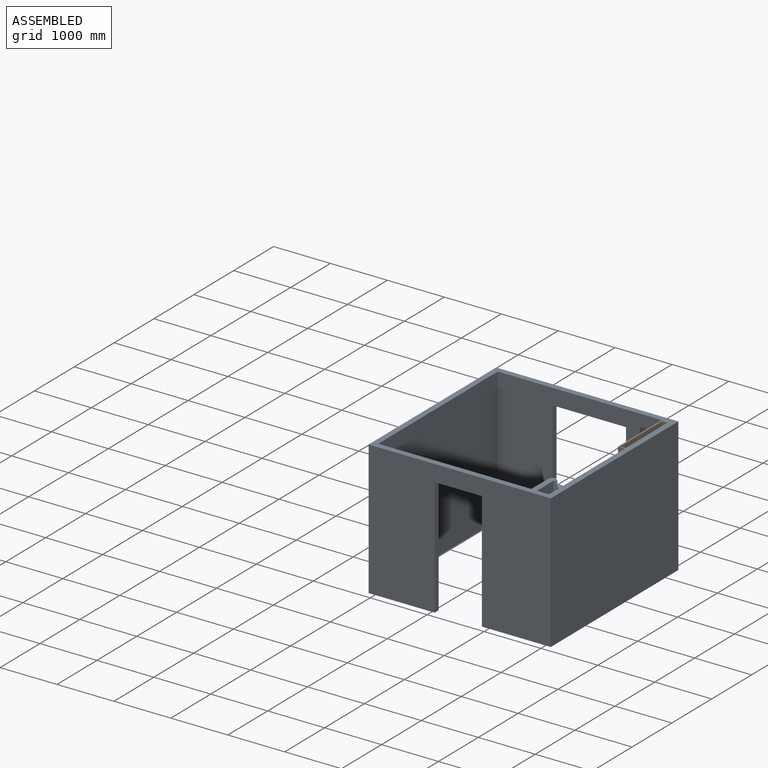
[diagram: assembled view]
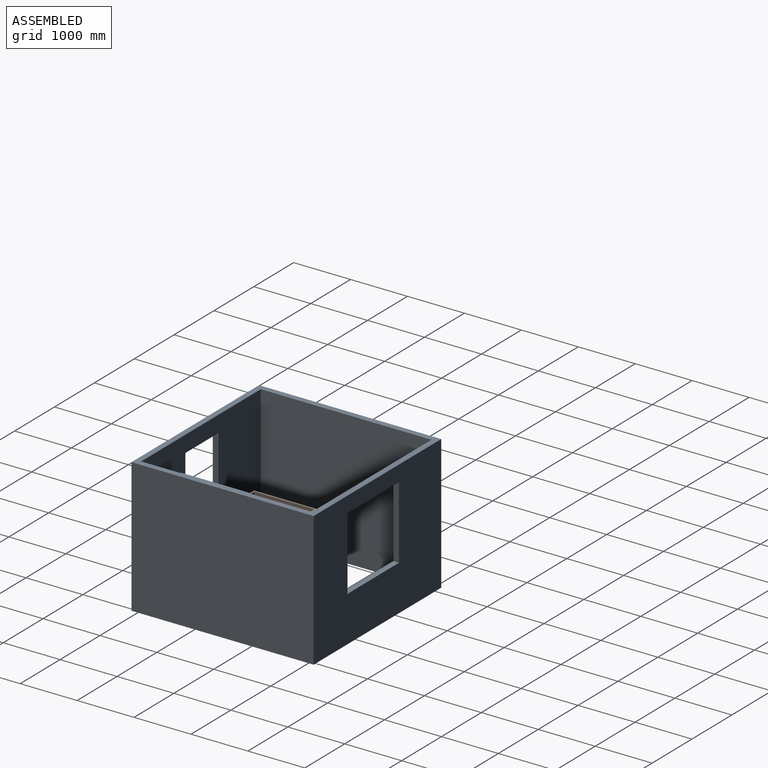
[diagram: assembled view, second angle]
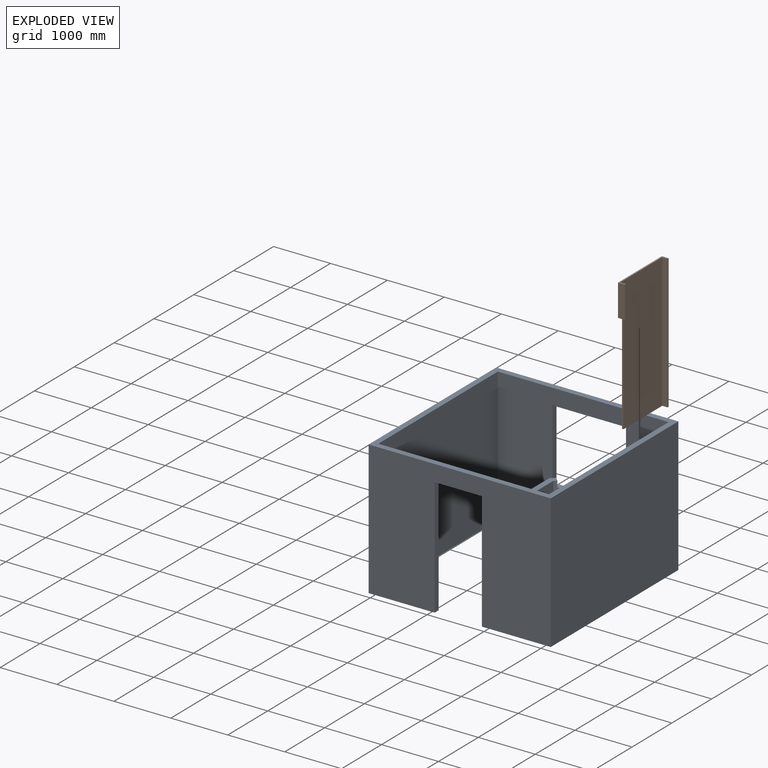
[diagram: exploded view]
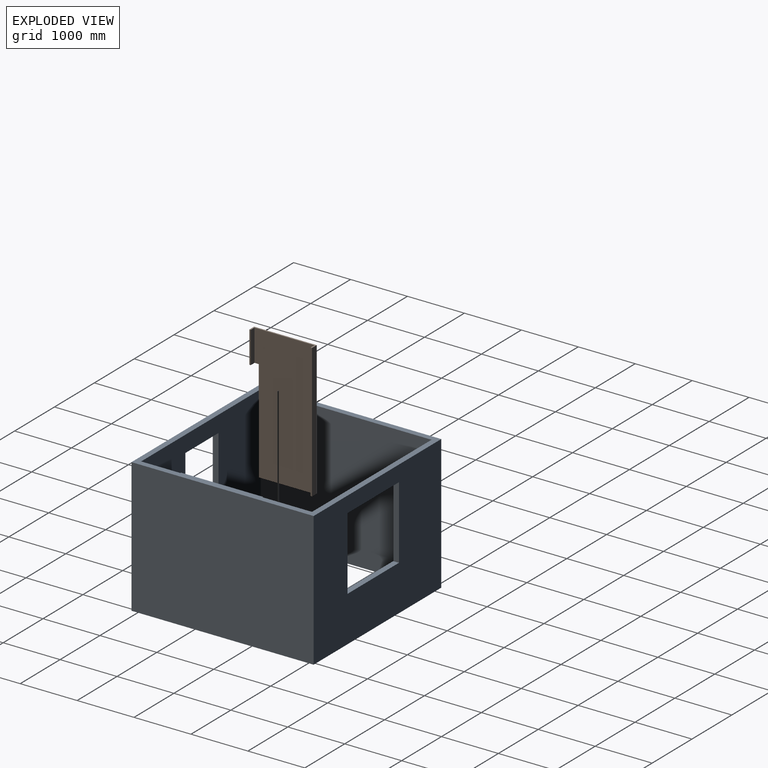
[diagram: exploded view, second angle]
ASSEMBLY  parts=2 mates=3
PART A: 29 faces, bbox 3200x3200x2360 mm
  f0: plane 3000x2360mm, normal (-1,0,0), area 6900000mm2, adj f1,f3,f8,f9,f23,f24,f28
  f1: plane 3000x2360mm, normal (0,1,0), area 5181900mm2, adj f0,f7,f8,f9,f10,f11,f12,f17
  f2: plane 3200x2360mm, normal (0,-1,0), area 5833900mm2, adj f4,f6,f8,f9,f10,f11,f12
  f3: plane 3000x2360mm, normal (0,-1,0), area 5428800mm2, adj f0,f7,f8,f9,f13,f14,f15,f16
  f4: plane 3200x2360mm, normal (1,0,0), area 7552000mm2, adj f2,f5,f8,f9
  f5: plane 3200x2360mm, normal (0,1,0), area 5900800mm2, adj f4,f6,f8,f9,f13,f14,f15,f16
  f6: plane 3200x2360mm, normal (-1,0,0), area 7552000mm2, adj f2,f5,f8,f9
  f7: plane 3000x2360mm, normal (1,0,0), area 7080000mm2, adj f1,f3,f8,f9
  f8: plane 3200x3200mm, normal (0,0,1), area 1240000mm2, adj f0,f1,f2,f3,f4,f5,f6,f7
  f9: plane 3200x3200mm, normal (0,0,-1), area 1355578.6mm2, adj f0,f1,f2,f3,f4,f5,f6,f7
  f10: plane 2070x100mm, normal (1,0,0), area 207000mm2, adj f1,f2,f9,f12
  f11: plane 2070x100mm, normal (-1,0,0), area 207000mm2, adj f1,f2,f9,f12
  f12: plane 830x100mm, normal (0,0,-1), area 83000mm2, adj f1,f2,f10,f11
  f13: plane 1280x100mm, normal (1,0,0), area 128000mm2, adj f3,f5,f14,f15
  f14: plane 1290x100mm, normal (0,0,-1), area 129000mm2, adj f3,f5,f13,f16
  f15: plane 1290x100mm, normal (0,0,1), area 129000mm2, adj f3,f5,f13,f16
  f16: plane 1280x100mm, normal (-1,0,0), area 128000mm2, adj f3,f5,f14,f15
  f17: plane 1800x1392.89mm, normal (1,0,0), area 2507207.8mm2, adj f1,f9,f18,f22
  f18: plane 1800x41.42mm, normal (0.71,-0.71,0), area 105441.6mm2, adj f9,f17,f19,f22
  f19: plane 1800x70.71mm, normal (0.71,0.71,0), area 180000mm2, adj f9,f18,f20,f22
  f20: plane 1800x70.71mm, normal (-0.71,0.71,0), area 180000mm2, adj f9,f19,f21,f22
  f21: plane 1800x1434.31mm, normal (-1,0,0), area 2581766.2mm2, adj f1,f9,f20,f22
  f22: plane 1505.03x141.42mm, normal (0,0,1), area 149289.3mm2, adj f1,f17,f18,f19,f20,f21
  f23: plane 1800x392.89mm, normal (0,-1,0), area 707207.8mm2, adj f0,f9,f27,f28
  f24: plane 1800x434.31mm, normal (0,1,0), area 781766.2mm2, adj f0,f9,f25,f28
  f25: plane 1800x70.71mm, normal (-0.71,0.71,0), area 180000mm2, adj f9,f24,f26,f28
  f26: plane 1800x70.71mm, normal (-0.71,-0.71,0), area 180000mm2, adj f9,f25,f27,f28
  f27: plane 1800x41.42mm, normal (0.71,-0.71,0), area 105441.6mm2, adj f9,f23,f26,f28
  f28: plane 505.03x141.42mm, normal (0,0,1), area 49289.3mm2, adj f0,f23,f24,f25,f26,f27
PART B: 12 faces, bbox 1100x2360x120 mm
  f0: plane 560x120mm, normal (-1,0,0), area 67200mm2, adj f1,f3,f9,f10
  f1: plane 2360x1100mm, normal (0,0,-1), area 2416000mm2, adj f0,f2,f4,f9,f10,f11
  f2: plane 1000x120mm, normal (0,-1,0), area 27375mm2, adj f1,f4,f5,f6,f7,f11
  f3: plane 560x25mm, normal (0,0,1), area 14000mm2, adj f0,f8,f9,f10
  f4: plane 2360x120mm, normal (1,0,0), area 283200mm2, adj f1,f2,f5,f9
  f5: plane 2360x25mm, normal (0,0,1), area 59000mm2, adj f2,f4,f6,f9
  f6: plane 2360x95mm, normal (-1,0,0), area 224200mm2, adj f2,f5,f7,f9
  f7: plane 2360x1050mm, normal (0,0,1), area 2343000mm2, adj f2,f6,f8,f9,f10,f11
  f8: plane 560x95mm, normal (1,0,0), area 53200mm2, adj f3,f7,f9,f10
  f9: plane 1100x120mm, normal (0,1,0), area 32250mm2, adj f0,f1,f3,f4,f5,f6,f7,f8
  f10: plane 120x100mm, normal (0,-1,0), area 4875mm2, adj f0,f1,f3,f7,f8,f11
  f11: plane 1800x25mm, normal (-1,0,0), area 45000mm2, adj f1,f2,f7,f10
PLACE A t=(-4416.09,-5416.14,-71.26)mm
PLACE B rot(axis=(0.58,0.58,0.58),120deg) t=(-3036.09,-4466.14,2288.74)mm
MATE planar B.f2 <-> A.f9  axis (0,0,-1) through (-3018.38,-4373.85,-71.26)mm
MATE planar B.f4 <-> A.f3  axis (0,1,0) through (-2976.09,-3916.14,1108.74)mm
MATE planar B.f3 <-> A.f0  axis (1,0,0) through (-2916.09,-5003.64,2008.74)mm
